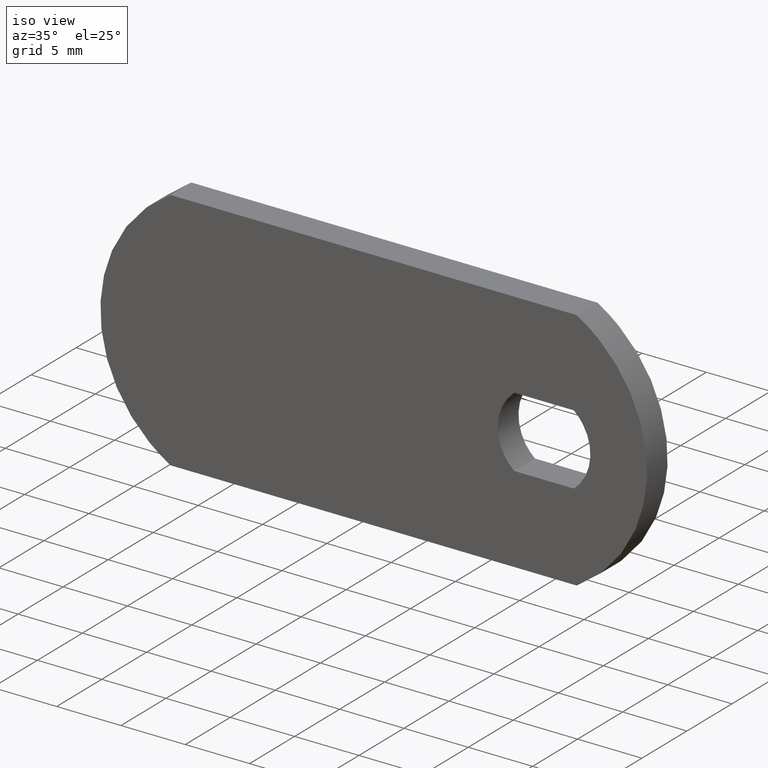
[diagram: clean part render]
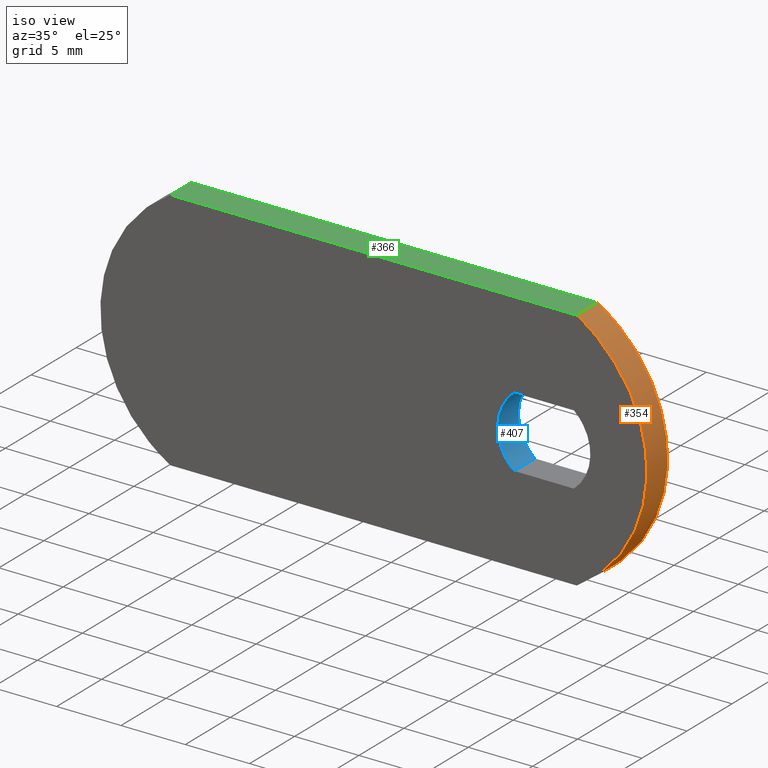
[diagram: same view with three faces highlighted in distinct colors, each labeled with its STEP entity id]
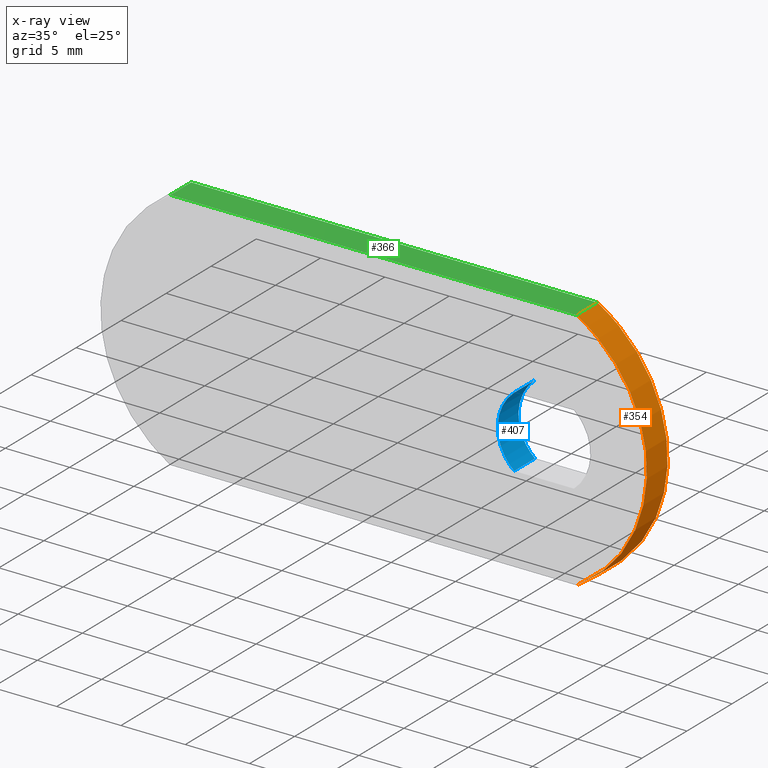
[diagram: x-ray of the same camera — body ghosted, the three highlighted faces saturated]
A machine part, iso view with three faces highlighted in distinct colors.
The next image is the same camera in x-ray (body ghosted, the three faces saturated) — at least one of them is partly hidden behind the body in this view.
Their STEP definitions:

[orange] entity #354 — the highlighted face is a freeform B-spline surface patch.
#51=CARTESIAN_POINT('',(2.545268253204700,0.0,9.500000000000000));
#52=VERTEX_POINT('',#51);
#58=CARTESIAN_POINT('',(2.545268253204700,0.0,-9.500000000000000));
#59=VERTEX_POINT('',#58);
#60=CARTESIAN_POINT('',(2.545268253204699,0.0,-9.500000000000005));
#61=CARTESIAN_POINT('',(8.0,0.0,-6.316005180499818));
#62=CARTESIAN_POINT('',(8.0,0.0,0.0));
#63=CARTESIAN_POINT('',(8.0,0.0,6.316005180499816));
#64=CARTESIAN_POINT('',(2.545268253204703,0.0,9.500000000000004));
#72=(BOUNDED_CURVE()B_SPLINE_CURVE(2,(#60,#61,#62,#63,#64),.UNSPECIFIED.,.F.,.U.)B_SPLINE_CURVE_WITH_KNOTS((3,2,3),(0.0,0.500000000000000,1.0),.UNSPECIFIED.)CURVE()GEOMETRIC_REPRESENTATION_ITEM()RATIONAL_B_SPLINE_CURVE((1.0,0.867212573636326,1.0,0.867212573636326,1.0))REPRESENTATION_ITEM(''));
#73=EDGE_CURVE('',#59,#52,#72,.T.);
#157=CARTESIAN_POINT('',(2.545268253204700,-2.300000000000080,9.500000000000000));
#158=VERTEX_POINT('',#157);
#181=CARTESIAN_POINT('',(2.545268253204700,-2.300000000000080,-9.500000000000000));
#182=VERTEX_POINT('',#181);
#188=CARTESIAN_POINT('',(2.545268253204699,-2.300000000000080,-9.500000000000005));
#189=CARTESIAN_POINT('',(8.0,-2.300000000000080,-6.316005180499818));
#190=CARTESIAN_POINT('',(8.0,-2.300000000000080,0.0));
#191=CARTESIAN_POINT('',(8.0,-2.300000000000080,6.316005180499816));
#192=CARTESIAN_POINT('',(2.545268253204703,-2.300000000000080,9.500000000000004));
#200=(BOUNDED_CURVE()B_SPLINE_CURVE(2,(#188,#189,#190,#191,#192),.UNSPECIFIED.,.F.,.U.)B_SPLINE_CURVE_WITH_KNOTS((3,2,3),(0.0,0.500000000000000,1.0),.UNSPECIFIED.)CURVE()GEOMETRIC_REPRESENTATION_ITEM()RATIONAL_B_SPLINE_CURVE((1.0,0.867212573636326,1.0,0.867212573636326,1.0))REPRESENTATION_ITEM(''));
#201=EDGE_CURVE('',#182,#158,#200,.T.);
#320=CARTESIAN_POINT('',(2.545268253204700,-2.300000000000080,-9.500000000000000));
#321=CARTESIAN_POINT('',(2.545268253204700,0.0,-9.500000000000000));
#322=QUASI_UNIFORM_CURVE('',1,(#320,#321),.UNSPECIFIED.,.F.,.U.);
#323=EDGE_CURVE('',#182,#59,#322,.T.);
#330=CARTESIAN_POINT('',(2.202686858099499,-2.357500000000082,-9.691854799601506));
#331=CARTESIAN_POINT('',(2.202686858099499,0.058937500000002,-9.691854799601506));
#332=CARTESIAN_POINT('',(21.224022905627926,-2.357500000000083,0.518993084958154));
#333=CARTESIAN_POINT('',(21.224022905627926,0.058937500000002,0.518993084958154));
#334=CARTESIAN_POINT('',(1.782812632405270,-2.357500000000082,9.905791403179480));
#335=CARTESIAN_POINT('',(1.782812632405270,0.058937500000002,9.905791403179480));
#343=(BOUNDED_SURFACE()B_SPLINE_SURFACE(1,2,((#330,#332,#334),(#331,#333,#335)),.UNSPECIFIED.,.F.,.F.,.U.)B_SPLINE_SURFACE_WITH_KNOTS((2,2),(3,3),(0.0,2.416437500000084),(0.0,26.963234678157001),.UNSPECIFIED.)GEOMETRIC_REPRESENTATION_ITEM()RATIONAL_B_SPLINE_SURFACE(((1.0,0.453990499739547,1.0),(1.0,0.453990499739547,1.0)))REPRESENTATION_ITEM('')SURFACE());
#344=ORIENTED_EDGE('',*,*,#73,.T.);
#345=CARTESIAN_POINT('',(2.545268253204700,-2.300000000000080,9.500000000000000));
#346=CARTESIAN_POINT('',(2.545268253204700,0.0,9.500000000000000));
#347=QUASI_UNIFORM_CURVE('',1,(#345,#346),.UNSPECIFIED.,.F.,.U.);
#348=EDGE_CURVE('',#158,#52,#347,.T.);
#349=ORIENTED_EDGE('',*,*,#348,.F.);
#350=ORIENTED_EDGE('',*,*,#201,.F.);
#351=ORIENTED_EDGE('',*,*,#323,.T.);
#352=EDGE_LOOP('',(#344,#349,#350,#351));
#353=FACE_OUTER_BOUND('',#352,.T.);
#354=ADVANCED_FACE('',(#353),#343,.T.);

[blue] entity #407 — the highlighted face is a freeform B-spline surface patch.
#99=CARTESIAN_POINT('',(-2.323252031097790,0.0,2.750000000000000));
#100=VERTEX_POINT('',#99);
#108=CARTESIAN_POINT('',(-2.323252031097790,0.0,-2.750000000000000));
#109=VERTEX_POINT('',#108);
#110=CARTESIAN_POINT('',(-2.323252031097790,0.0,2.749999999999999));
#111=CARTESIAN_POINT('',(-3.600000000000001,0.0,1.671379159290166));
#112=CARTESIAN_POINT('',(-3.600000000000000,0.0,0.0));
#113=CARTESIAN_POINT('',(-3.600000000000001,0.0,-1.671379159290167));
#114=CARTESIAN_POINT('',(-2.323252031097789,0.0,-2.750000000000000));
#122=(BOUNDED_CURVE()B_SPLINE_CURVE(2,(#110,#111,#112,#113,#114),.UNSPECIFIED.,.F.,.U.)B_SPLINE_CURVE_WITH_KNOTS((3,2,3),(0.0,0.500000000000000,1.0),.UNSPECIFIED.)CURVE()GEOMETRIC_REPRESENTATION_ITEM()RATIONAL_B_SPLINE_CURVE((1.0,0.907013722723105,1.0,0.907013722723105,1.0))REPRESENTATION_ITEM(''));
#123=EDGE_CURVE('',#100,#109,#122,.T.);
#205=CARTESIAN_POINT('',(-2.323252031097790,-2.300000000000080,2.750000000000000));
#206=VERTEX_POINT('',#205);
#231=CARTESIAN_POINT('',(-2.323252031097790,-2.300000000000080,-2.750000000000000));
#232=VERTEX_POINT('',#231);
#238=CARTESIAN_POINT('',(-2.323252031097790,-2.300000000000080,2.749999999999999));
#239=CARTESIAN_POINT('',(-3.600000000000001,-2.300000000000080,1.671379159290166));
#240=CARTESIAN_POINT('',(-3.600000000000000,-2.300000000000080,0.0));
#241=CARTESIAN_POINT('',(-3.600000000000001,-2.300000000000080,-1.671379159290167));
#242=CARTESIAN_POINT('',(-2.323252031097789,-2.300000000000080,-2.750000000000000));
#250=(BOUNDED_CURVE()B_SPLINE_CURVE(2,(#238,#239,#240,#241,#242),.UNSPECIFIED.,.F.,.U.)B_SPLINE_CURVE_WITH_KNOTS((3,2,3),(0.0,0.500000000000000,1.0),.UNSPECIFIED.)CURVE()GEOMETRIC_REPRESENTATION_ITEM()RATIONAL_B_SPLINE_CURVE((1.0,0.907013722723105,1.0,0.907013722723105,1.0))REPRESENTATION_ITEM(''));
#251=EDGE_CURVE('',#206,#232,#250,.T.);
#373=CARTESIAN_POINT('',(-2.323252031097790,-2.300000000000080,-2.750000000000000));
#374=CARTESIAN_POINT('',(-2.323252031097790,0.0,-2.750000000000000));
#375=QUASI_UNIFORM_CURVE('',1,(#373,#374),.UNSPECIFIED.,.F.,.U.);
#376=EDGE_CURVE('',#232,#109,#375,.T.);
#383=CARTESIAN_POINT('',(-2.250469302804591,-2.357500000000082,2.809873292006992));
#384=CARTESIAN_POINT('',(-2.250469302804591,0.058937500000002,2.809873292006992));
#385=CARTESIAN_POINT('',(-5.846943110431760,-2.357500000000082,-0.070596060625135));
#386=CARTESIAN_POINT('',(-5.846943110431760,0.058937500000002,-0.070596060625135));
#387=CARTESIAN_POINT('',(-2.181970246888101,-2.357500000000082,-2.863390619823826));
#388=CARTESIAN_POINT('',(-2.181970246888101,0.058937500000002,-2.863390619823826));
#396=(BOUNDED_SURFACE()B_SPLINE_SURFACE(1,2,((#383,#385,#387),(#384,#386,#388)),.UNSPECIFIED.,.F.,.F.,.U.)B_SPLINE_SURFACE_WITH_KNOTS((2,2),(3,3),(0.0,2.416437500000085),(0.0,7.023349275348402),.UNSPECIFIED.)GEOMETRIC_REPRESENTATION_ITEM()RATIONAL_B_SPLINE_SURFACE(((1.0,0.615661475325658,1.0),(1.0,0.615661475325658,1.0)))REPRESENTATION_ITEM('')SURFACE());
#397=ORIENTED_EDGE('',*,*,#123,.F.);
#398=CARTESIAN_POINT('',(-2.323252031097790,-2.300000000000080,2.750000000000000));
#399=CARTESIAN_POINT('',(-2.323252031097790,0.0,2.750000000000000));
#400=QUASI_UNIFORM_CURVE('',1,(#398,#399),.UNSPECIFIED.,.F.,.U.);
#401=EDGE_CURVE('',#206,#100,#400,.T.);
#402=ORIENTED_EDGE('',*,*,#401,.F.);
#403=ORIENTED_EDGE('',*,*,#251,.T.);
#404=ORIENTED_EDGE('',*,*,#376,.T.);
#405=EDGE_LOOP('',(#397,#402,#403,#404));
#406=FACE_OUTER_BOUND('',#405,.T.);
#407=ADVANCED_FACE('',(#406),#396,.F.);

[green] entity #366 — the highlighted face is a freeform B-spline surface patch.
#49=CARTESIAN_POINT('',(-29.045268253204700,0.0,9.500000000000000));
#50=VERTEX_POINT('',#49);
#51=CARTESIAN_POINT('',(2.545268253204700,0.0,9.500000000000000));
#52=VERTEX_POINT('',#51);
#53=CARTESIAN_POINT('',(-29.045268253204700,0.0,9.500000000000000));
#54=CARTESIAN_POINT('',(2.545268253204700,0.0,9.500000000000000));
#55=QUASI_UNIFORM_CURVE('',1,(#53,#54),.UNSPECIFIED.,.F.,.U.);
#56=EDGE_CURVE('',#50,#52,#55,.T.);
#155=CARTESIAN_POINT('',(-29.045268253204700,-2.300000000000080,9.500000000000000));
#156=VERTEX_POINT('',#155);
#157=CARTESIAN_POINT('',(2.545268253204700,-2.300000000000080,9.500000000000000));
#158=VERTEX_POINT('',#157);
#159=CARTESIAN_POINT('',(-29.045268253204700,-2.300000000000080,9.500000000000000));
#160=CARTESIAN_POINT('',(2.545268253204700,-2.300000000000080,9.500000000000000));
#161=QUASI_UNIFORM_CURVE('',1,(#159,#160),.UNSPECIFIED.,.F.,.U.);
#162=EDGE_CURVE('',#156,#158,#161,.T.);
#306=CARTESIAN_POINT('',(-29.045268253204700,-2.300000000000080,9.500000000000000));
#307=CARTESIAN_POINT('',(-29.045268253204700,0.0,9.500000000000000));
#308=QUASI_UNIFORM_CURVE('',1,(#306,#307),.UNSPECIFIED.,.F.,.U.);
#309=EDGE_CURVE('',#156,#50,#308,.T.);
#345=CARTESIAN_POINT('',(2.545268253204700,-2.300000000000080,9.500000000000000));
#346=CARTESIAN_POINT('',(2.545268253204700,0.0,9.500000000000000));
#347=QUASI_UNIFORM_CURVE('',1,(#345,#346),.UNSPECIFIED.,.F.,.U.);
#348=EDGE_CURVE('',#158,#52,#347,.T.);
#355=CARTESIAN_POINT('',(-30.623216380119331,-2.414884952360729,9.500000000000000));
#356=CARTESIAN_POINT('',(4.123216380119319,-2.414884952360729,9.500000000000000));
#357=CARTESIAN_POINT('',(-30.623216380119331,0.114885055178661,9.500000000000000));
#358=CARTESIAN_POINT('',(4.123216380119319,0.114885055178661,9.500000000000000));
#359=B_SPLINE_SURFACE_WITH_KNOTS('',1,1,((#355,#357),(#356,#358)),.UNSPECIFIED.,.F.,.F.,.U.,(2,2),(2,2),(0.0,34.746432760238648),(0.0,2.529770007539390),.UNSPECIFIED.);
#360=ORIENTED_EDGE('',*,*,#56,.F.);
#361=ORIENTED_EDGE('',*,*,#309,.F.);
#362=ORIENTED_EDGE('',*,*,#162,.T.);
#363=ORIENTED_EDGE('',*,*,#348,.T.);
#364=EDGE_LOOP('',(#360,#361,#362,#363));
#365=FACE_OUTER_BOUND('',#364,.T.);
#366=ADVANCED_FACE('',(#365),#359,.T.);